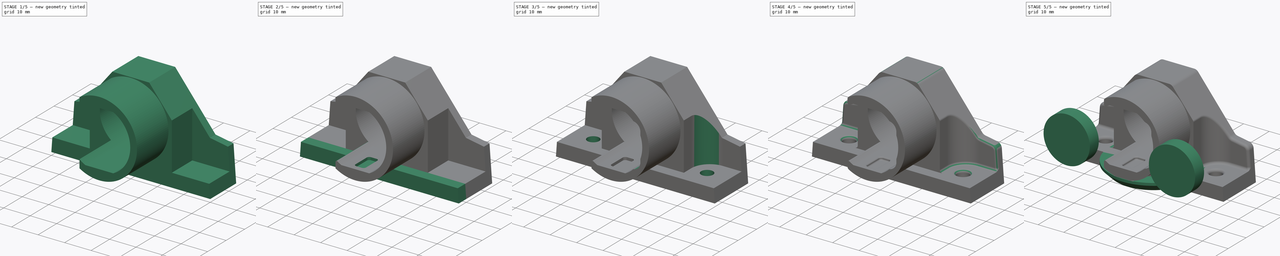
[diagram: build sequence overview — one tinted view per stage of 5, left to right]
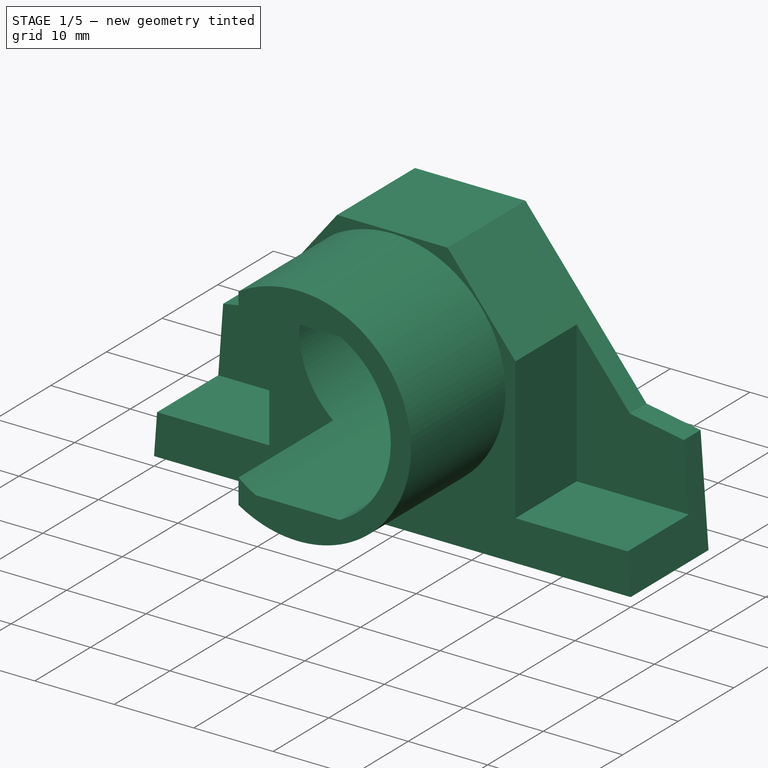
[diagram: stage 1 of 5 — iso view after this stage's code; geometry added in this stage tinted green]
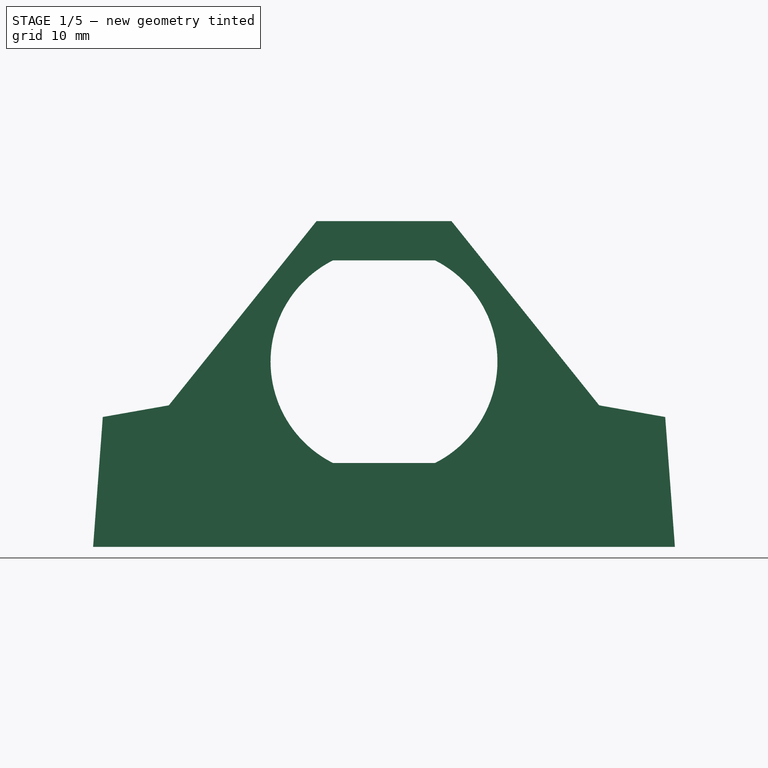
[diagram: stage 1 of 5 — front view after this stage's code; geometry added in this stage tinted green]
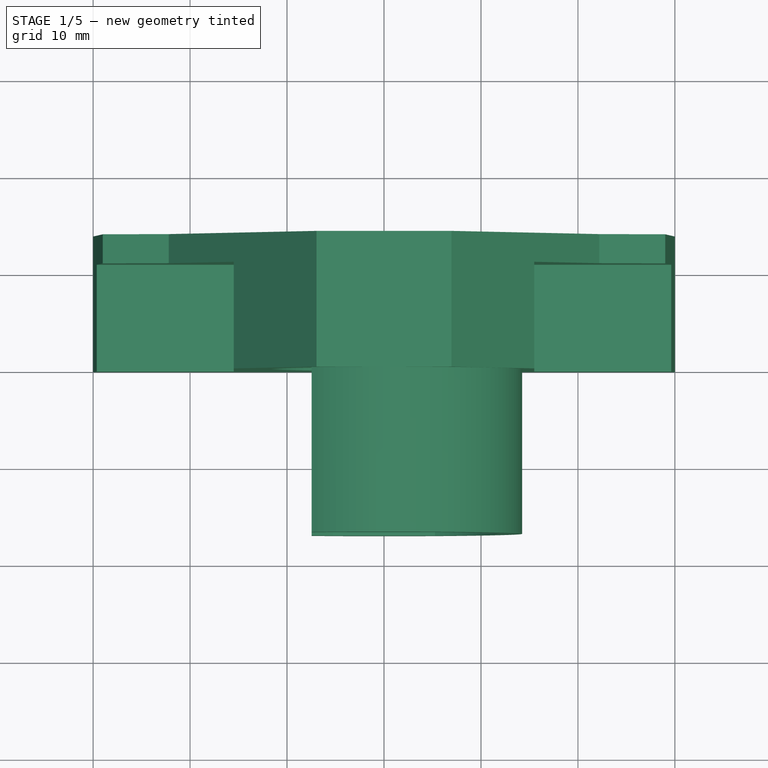
[diagram: stage 1 of 5 — top view after this stage's code; geometry added in this stage tinted green]
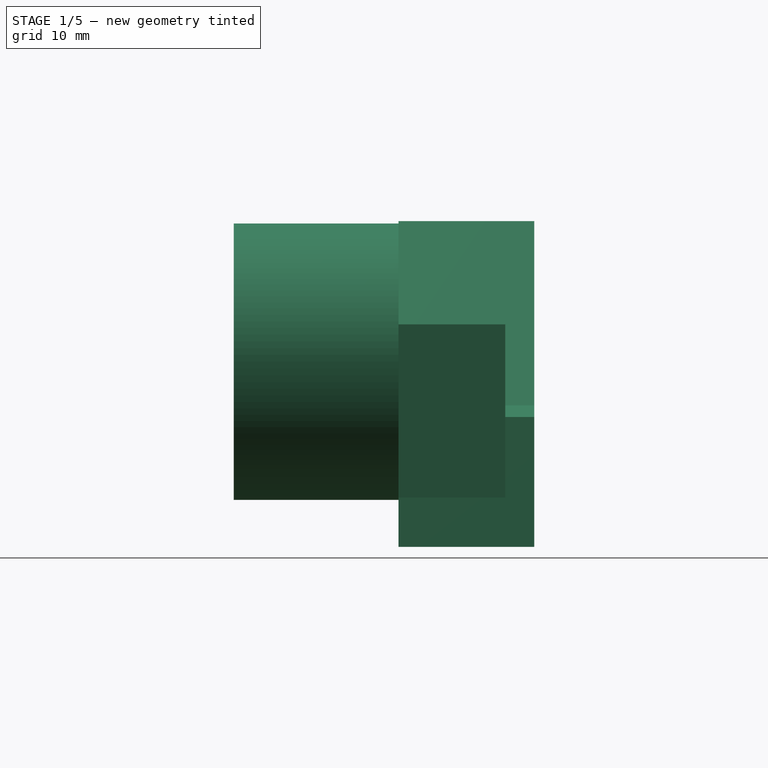
[diagram: stage 1 of 5 — right view after this stage's code; geometry added in this stage tinted green]
FCSTD DOCUMENT  (FreeCAD 0.18R16117 (Git))
Label: Trit_SensorBracket_mk7
License: All rights reserved
LicenseURL: http://en.wikipedia.org/wiki/All_rights_reserved
objects: Sketcher::SketchObject×14, PartDesign::Fillet×7, PartDesign::Pocket×6, PartDesign::Pad×4, PartDesign::Groove×2, Part::Cylinder×2, PartDesign::Body×2, App::DocumentObjectGroup×1, PartDesign::Revolution×1
note: 51 computed .brp shape members not serialized (recipe doc carries the construction recipe); baked Part::Feature solids carry a one-line shape summary decoded from their .brp

FEATURE [Sketcher::SketchObject] Sketch
  MapMode = 5
  Placement = pos=(0,0,0) rot=(1,0,0;1.5708rad)
  Support = -> [XZ_Plane]
  sketch-geometry (7):
    g0: Circle CenterX=0 CenterY=0 CenterZ=0 NormalX=0 NormalY=0 NormalZ=1 AngleXU=0 Radius=14.25
    g1: ArcOfCircle CenterX=0 CenterY=0 CenterZ=0 NormalX=0 NormalY=0 NormalZ=1 AngleXU=0 Radius=11.7 StartAngle=2.03726 EndAngle=4.24592
    g2: GeomPoint X=0 Y=14.25 Z=0
    g3: GeomPoint X=0 Y=11.7 Z=0
    g4: LineSegment StartX=-5.26189 StartY=10.45 StartZ=0 EndX=5.26189 EndY=10.45 EndZ=0
    g5: LineSegment StartX=-5.26189 StartY=-10.45 StartZ=0 EndX=5.26189 EndY=-10.45 EndZ=0
    g6: ArcOfCircle CenterX=0 CenterY=0 CenterZ=0 NormalX=0 NormalY=0 NormalZ=1 AngleXU=0 Radius=11.7 StartAngle=5.17886 EndAngle=7.38751
  constraints (18):
    c: Coincident(g0,g-1)
    c: Diameter(g0) = 28.5
    c: Coincident(g1,g0)
    c: PointOnObject(g3,g1)
    c: PointOnObject(g3,g-2)
    c: PointOnObject(g2,g-2)
    c: PointOnObject(g2,g0)
    c: Horizontal(g4)
    c: Horizontal(g5)
    c: Diameter(g1) = 23.4
    c: Coincident(g1,g4)
    c: Coincident(g6,g4)
    c: Equal(g1,g6)
    c: Coincident(g1,g5)
    c: Coincident(g6,g5)
    c: Coincident(g1,g6)
    c: Equal(g5,g4)
    c: Distance(g0,g4) = 10.45
FEATURE [PartDesign::Pad] Pad
  Length = 17
  Length2 = 100
  Placement = pos=(0,0,0) rot=(1,0,0;1.5708rad)
  Profile = -> Sketch
  Type = 0
FEATURE [Sketcher::SketchObject] Sketch004
  MapMode = 5
  Placement = pos=(0,0,0) rot=(-1,0,0;1.5708rad)
  sketch-geometry (15):
    g0: LineSegment StartX=-30 StartY=19.1 StartZ=0 EndX=30 EndY=19.1 EndZ=0
    g1: ArcOfCircle [constr] CenterX=-7.09735 CenterY=21.9625 CenterZ=0 NormalX=0 NormalY=0 NormalZ=1 AngleXU=0 Radius=23.0809 StartAngle=3.26594 EndAngle=4.38603
    g2: GeomPoint X=0 Y=0 Z=0
    g3: GeomPoint X=0 Y=17.1 Z=0
    g4: ArcOfCircle [constr] CenterX=7.09735 CenterY=21.9625 CenterZ=0 NormalX=0 NormalY=0 NormalZ=1 AngleXU=0 Radius=23.0809 StartAngle=5.03875 EndAngle=6.15884
    g5: Circle CenterX=0 CenterY=0 CenterZ=0 NormalX=0 NormalY=0 NormalZ=1 AngleXU=0 Radius=11.7
    g6: ArcOfCircle [constr] CenterX=0 CenterY=0 CenterZ=0 NormalX=0 NormalY=0 NormalZ=1 AngleXU=0 Radius=14.4973 StartAngle=3.13469 EndAngle=6.29008
    g7: LineSegment [constr] StartX=-6.95769 StartY=-14.4973 StartZ=0 EndX=6.95769 EndY=-14.4973 EndZ=0
    g8: LineSegment StartX=-30 StartY=19.1 StartZ=0 EndX=-29 EndY=5.70292 EndZ=0
    g9: LineSegment StartX=-29 StartY=5.70292 StartZ=0 EndX=-22.193 EndY=4.50266 EndZ=0
    g10: LineSegment StartX=-22.193 StartY=4.50266 StartZ=0 EndX=-6.95769 EndY=-14.4973 EndZ=0
    g11: LineSegment StartX=-6.95769 StartY=-14.4973 StartZ=0 EndX=6.95769 EndY=-14.4973 EndZ=0
    g12: LineSegment StartX=6.95769 StartY=-14.4973 StartZ=0 EndX=22.193 EndY=4.50266 EndZ=0
    g13: LineSegment StartX=22.193 StartY=4.50266 StartZ=0 EndX=29 EndY=5.70292 EndZ=0
    g14: LineSegment StartX=29 StartY=5.70292 StartZ=0 EndX=30 EndY=19.1 EndZ=0
  constraints (36):
    c: Horizontal(g0)
    c: PointOnObject(g2,g1)
    c: Coincident(g1,g0)
    c: PointOnObject(g3,g-2)
    c: Distance(g3,g0) = 2
    c: Coincident(g4,g0)
    c: Symmetric(g4,g1,g-2)
    c: DistanceX(g0,g0) = 60
    c: Distance(g4,g0) = 19
    c: Coincident(g6,g5)
    c: Coincident(g6,g1)
    c: Coincident(g6,g4)
    c: Coincident(g5,g-1)
    c: Coincident(g2,g5)
    c: Distance(g2,g0) = 19.1
    c: Symmetric(g7,g7,g-2)
    c: Coincident(g8,g0)
    c: Coincident(g8,g9)
    c: Coincident(g9,g10)
    c: Coincident(g10,g11)
    c: Coincident(g11,g7)
    c: Tangent(g11,g6)
    c: Coincident(g11,g12)
    c: Coincident(g12,g13)
    c: Coincident(g13,g14)
    c: Coincident(g14,g0)
    c: Symmetric(g13,g8,g-2)
    c: Symmetric(g9,g12,g-2)
    c: Coincident(g7,g10)
    c: Block(g6)
    c: Tangent(g10,g6)
    c: Diameter(g5) = 23.4
    c: PointOnObject(g12,g4)
    c: DistanceX(g8,g13) = 58
    c: Angle(g-1,g13) = 0.174533
    c: Distance(g9,g11) = 19
FEATURE [PartDesign::Pad] Pad001
  BaseFeature = -> Pad
  Length = 14
  Length2 = 100
  Placement = pos=(0,0,0) rot=(1,0,0;1.5708rad)
  Profile = -> Sketch004
  Type = 0
FEATURE [Sketcher::SketchObject] Sketch005
  MapMode = 5
  Support = -> [XY_Plane]
  sketch-geometry (8):
    g0: LineSegment StartX=32.5 StartY=11 StartZ=0 EndX=15.5 EndY=11 EndZ=0
    g1: LineSegment StartX=15.5 StartY=11 StartZ=0 EndX=15.5 EndY=0 EndZ=0
    g2: LineSegment StartX=15.5 StartY=0 StartZ=0 EndX=32.5 EndY=0 EndZ=0
    g3: LineSegment StartX=32.5 StartY=0 StartZ=0 EndX=32.5 EndY=11 EndZ=0
    g4: LineSegment StartX=-32.5 StartY=11 StartZ=0 EndX=-15.5 EndY=11 EndZ=0
    g5: LineSegment StartX=-15.5 StartY=11 StartZ=0 EndX=-15.5 EndY=0 EndZ=0
    g6: LineSegment StartX=-15.5 StartY=0 StartZ=0 EndX=-32.5 EndY=0 EndZ=0
    g7: LineSegment StartX=-32.5 StartY=0 StartZ=0 EndX=-32.5 EndY=11 EndZ=0
  constraints (22):
    c: Coincident(g0,g1)
    c: Coincident(g1,g2)
    c: Coincident(g2,g3)
    c: Coincident(g3,g0)
    c: Horizontal(g0)
    c: Horizontal(g2)
    c: Vertical(g1)
    c: Vertical(g3)
    c: Coincident(g4,g5)
    c: Coincident(g5,g6)
    c: Coincident(g6,g7)
    c: Coincident(g7,g4)
    c: Horizontal(g4)
    c: Horizontal(g6)
    c: Vertical(g5)
    c: Vertical(g7)
    c: Symmetric(g4,g0,g-2)
    c: Symmetric(g6,g2,g-2)
    c: Distance(g3) = 11
    c: DistanceX(g4,g0) = 65
    c: DistanceX(g2,g2) = 17
    c: PointOnObject(g2,g-1)
FEATURE [PartDesign::Pocket] Pocket001
  BaseFeature = -> Pad001
  Length = 14
  Length2 = 119
  Placement = pos=(0,0,0) rot=(1,0,0;1.5708rad)
  Profile = -> Sketch005
  Type = 4
FEATURE [Sketcher::SketchObject] Sketch012  label="BACKSLOT"
  MapMode = 5
  Placement = pos=(0,-16,-4e-15) rot=(1,0,0;1.5708rad)
  sketch-geometry (10):
    g0: LineSegment [constr] StartX=21.6799 StartY=14.0853 StartZ=0 EndX=7.46241 EndY=14.0853 EndZ=0
    g1: LineSegment [constr] StartX=7.46241 StartY=14.0853 StartZ=0 EndX=7.46241 EndY=-16 EndZ=0
    g2: LineSegment [constr] StartX=7.46241 StartY=-16 StartZ=0 EndX=21.6799 EndY=-16 EndZ=0
    g3: LineSegment [constr] StartX=21.6799 StartY=-16 StartZ=0 EndX=21.6799 EndY=14.0853 EndZ=0
    g4: LineSegment StartX=-21.6799 StartY=14.0853 StartZ=0 EndX=-7.46241 EndY=14.0853 EndZ=0
    g5: LineSegment StartX=-7.46241 StartY=14.0853 StartZ=0 EndX=-7.46241 EndY=-16 EndZ=0
    g6: LineSegment StartX=-7.46241 StartY=-16 StartZ=0 EndX=-21.6799 EndY=-16 EndZ=0
    g7: LineSegment StartX=-21.6799 StartY=-16 StartZ=0 EndX=-21.6799 EndY=14.0853 EndZ=0
    g8: GeomPoint X=7.46241 Y=8.75 Z=0
    g9: GeomPoint X=7.46241 Y=-8.75 Z=0
  constraints (21):
    c: Coincident(g0,g1)
    c: Coincident(g1,g2)
    c: Coincident(g2,g3)
    c: Coincident(g3,g0)
    c: Horizontal(g0)
    c: Horizontal(g2)
    c: Vertical(g1)
    c: Vertical(g3)
    c: Coincident(g4,g5)
    c: Coincident(g5,g6)
    c: Coincident(g6,g7)
    c: Coincident(g7,g4)
    c: Horizontal(g4)
    c: Horizontal(g6)
    c: Vertical(g5)
    c: Vertical(g7)
    c: Symmetric(g0,g4,g-2)
    c: Symmetric(g1,g5,g-2)
    c: Symmetric(g8,g9,g-1)
    c: PointOnObject(g8,g1)
    c: DistanceY(g9,g8) = 17.5
FEATURE [Sketcher::SketchObject] Sketch014  label="GTWORKS_LOGO"
  MapMode = 5
  Placement = pos=(0,14,-1.6e-14) rot=(-1,0,0;1.5708rad)
  sketch-geometry (73):
    g0: LineSegment [constr] StartX=-26.698 StartY=12.8827 StartZ=0 EndX=-21.906 EndY=12.8827 EndZ=0
    g1: LineSegment [constr] StartX=-21.906 StartY=12.8827 StartZ=0 EndX=-21.906 EndY=6.66673 EndZ=0
    g2: LineSegment [constr] StartX=-21.906 StartY=6.66673 StartZ=0 EndX=-26.698 EndY=6.66673 EndZ=0
    g3: LineSegment [constr] StartX=-26.698 StartY=6.66673 StartZ=0 EndX=-26.698 EndY=12.8827 EndZ=0
    g4: LineSegment [constr] StartX=-20.618 StartY=12.8827 StartZ=0 EndX=-15.826 EndY=12.8827 EndZ=0
    g5: LineSegment [constr] StartX=-15.826 StartY=12.8827 StartZ=0 EndX=-15.826 EndY=6.66673 EndZ=0
    g6: LineSegment [constr] StartX=-15.826 StartY=6.66673 StartZ=0 EndX=-20.618 EndY=6.66673 EndZ=0
    g7: LineSegment [constr] StartX=-20.618 StartY=6.66673 StartZ=0 EndX=-20.618 EndY=12.8827 EndZ=0
    g8: LineSegment StartX=-21.906 StartY=12.8827 StartZ=0 EndX=-24.298 EndY=12.8827 EndZ=0
    g9: LineSegment StartX=-26.698 StartY=10.4827 StartZ=0 EndX=-26.698 EndY=9.06673 EndZ=0
    g10: LineSegment StartX=-24.298 StartY=6.66673 StartZ=0 EndX=-21.906 EndY=6.66673 EndZ=0
    g11: LineSegment StartX=-21.906 StartY=6.66673 StartZ=0 EndX=-21.906 EndY=10.3947 EndZ=0
    g12: LineSegment StartX=-21.906 StartY=10.3947 StartZ=0 EndX=-23.77 EndY=10.3947 EndZ=0
    g13: LineSegment StartX=-23.77 StartY=10.3947 StartZ=0 EndX=-23.77 EndY=8.53073 EndZ=0
    g14: LineSegment StartX=-23.77 StartY=8.53073 StartZ=0 EndX=-24.53 EndY=8.53073 EndZ=0
    g15: LineSegment StartX=-25.058 StartY=9.05873 StartZ=0 EndX=-25.058 EndY=10.4907 EndZ=0
    g16: LineSegment StartX=-24.53 StartY=11.0187 StartZ=0 EndX=-21.906 EndY=11.0187 EndZ=0
    g17: LineSegment StartX=-21.906 StartY=11.0187 StartZ=0 EndX=-21.906 EndY=12.8827 EndZ=0
    g18: ArcOfCircle CenterX=-24.298 CenterY=10.4827 CenterZ=0 NormalX=0 NormalY=0 NormalZ=1 AngleXU=0 Radius=2.4 StartAngle=1.5708 EndAngle=3.14159
    g19: ArcOfCircle CenterX=-24.298 CenterY=9.06673 CenterZ=0 NormalX=0 NormalY=0 NormalZ=1 AngleXU=0 Radius=2.4 StartAngle=3.14159 EndAngle=4.71239
    g20: ArcOfCircle CenterX=-24.53 CenterY=9.05873 CenterZ=0 NormalX=0 NormalY=0 NormalZ=1 AngleXU=0 Radius=0.528 StartAngle=3.14159 EndAngle=4.71239
    g21: ArcOfCircle CenterX=-24.53 CenterY=10.4907 CenterZ=0 NormalX=0 NormalY=0 NormalZ=1 AngleXU=0 Radius=0.528 StartAngle=1.5708 EndAngle=3.14159
    g22: LineSegment StartX=-17.4233 StartY=6.66673 StartZ=0 EndX=-19.0206 EndY=6.66673 EndZ=0
    g23: LineSegment StartX=-19.0206 StartY=6.66673 StartZ=0 EndX=-19.0206 EndY=11.0187 EndZ=0
    g24: LineSegment StartX=-19.0206 StartY=11.0187 StartZ=0 EndX=-20.618 EndY=11.0187 EndZ=0
    g25: LineSegment StartX=-20.618 StartY=11.0187 StartZ=0 EndX=-20.618 EndY=12.8827 EndZ=0
    g26: LineSegment StartX=-20.618 StartY=12.8827 StartZ=0 EndX=-15.826 EndY=12.8827 EndZ=0
    g27: LineSegment StartX=-15.826 StartY=12.8827 StartZ=0 EndX=-15.826 EndY=11.0187 EndZ=0
    g28: LineSegment StartX=-15.826 StartY=11.0187 StartZ=0 EndX=-17.4233 EndY=11.0187 EndZ=0
    g29: LineSegment StartX=-17.4233 StartY=11.0187 StartZ=0 EndX=-17.4233 EndY=6.66673 EndZ=0
    g30: LineSegment StartX=-22.5518 StartY=12.4152 StartZ=0 EndX=-25.07 EndY=12.4152 EndZ=0
    g31: LineSegment StartX=-25.0477 StartY=11.2111 StartZ=0 EndX=-22.5518 EndY=11.2111 EndZ=0
    g32: LineSegment StartX=-22.3518 StartY=11.4111 StartZ=0 EndX=-22.3518 EndY=12.2152 EndZ=0
    g33: LineSegment StartX=-25.2477 StartY=11.0111 StartZ=0 EndX=-25.2477 EndY=8.43399 EndZ=0
    g34: LineSegment StartX=-26.0741 StartY=8.44336 StartZ=0 EndX=-26.0741 EndY=11.0443 EndZ=0
    g35: LineSegment StartX=-24.8354 StartY=8.02852 StartZ=0 EndX=-23.5217 EndY=8.02852 EndZ=0
    g36: LineSegment StartX=-22.1746 StartY=7.92521 StartZ=0 EndX=-22.1746 EndY=7.24296 EndZ=0
    g37: LineSegment StartX=-22.3746 StartY=7.04296 StartZ=0 EndX=-24.7866 EndY=7.04296 EndZ=0
    g38: LineSegment StartX=-23.3217 StartY=8.22852 StartZ=0 EndX=-23.3217 EndY=9.89252 EndZ=0
    g39: LineSegment StartX=-23.1217 StartY=10.0925 StartZ=0 EndX=-22.3746 EndY=10.0925 EndZ=0
    g40: LineSegment StartX=-22.1746 StartY=9.89252 StartZ=0 EndX=-22.1746 EndY=7.92521 EndZ=0
    g41: LineSegment StartX=-19.937 StartY=12.594 StartZ=0 EndX=-16.5911 EndY=12.594 EndZ=0
    g42: LineSegment StartX=-16.4528 StartY=12.4557 StartZ=0 EndX=-16.4528 EndY=11.616 EndZ=0
    g43: LineSegment StartX=-16.6139 StartY=11.4549 StartZ=0 EndX=-17.7835 EndY=11.4549 EndZ=0
    g44: LineSegment StartX=-20.0981 StartY=11.5932 StartZ=0 EndX=-20.0981 EndY=12.4329 EndZ=0
    g45: LineSegment StartX=-17.9037 StartY=11.3347 StartZ=0 EndX=-17.9037 EndY=7.05791 EndZ=0
    g46: LineSegment StartX=-17.9794 StartY=6.9822 StartZ=0 EndX=-18.4391 EndY=6.9822 EndZ=0
    g47: LineSegment StartX=-18.5272 StartY=7.07038 StartZ=0 EndX=-18.5272 EndY=11.2377 EndZ=0
    g48: LineSegment StartX=-25.2349 StartY=12.3284 StartZ=0 EndX=-26.039 EndY=11.1575 EndZ=0
    g49: LineSegment StartX=-25.1868 StartY=8.29024 StartZ=0 EndX=-24.9744 EndY=8.08478 EndZ=0
    g50: LineSegment StartX=-26.0223 StartY=8.30908 StartZ=0 EndX=-24.9348 EndY=7.10868 EndZ=0
    g51: LineSegment StartX=-18.7444 StartY=11.4549 StartZ=0 EndX=-19.9598 EndY=11.4549 EndZ=0
    g52: ArcOfCircle CenterX=-25.07 CenterY=12.2152 CenterZ=0 NormalX=0 NormalY=0 NormalZ=1 AngleXU=0 Radius=0.2 StartAngle=1.5708 EndAngle=2.53986
    g53: ArcOfCircle CenterX=-25.8741 CenterY=11.0443 CenterZ=0 NormalX=0 NormalY=0 NormalZ=1 AngleXU=0 Radius=0.2 StartAngle=2.53986 EndAngle=3.14159
    g54: ArcOfCircle CenterX=-25.8741 CenterY=8.44336 CenterZ=0 NormalX=0 NormalY=0 NormalZ=1 AngleXU=0 Radius=0.2 StartAngle=3.14159 EndAngle=3.87769
    g55: ArcOfCircle CenterX=-24.7866 CenterY=7.24296 CenterZ=0 NormalX=0 NormalY=0 NormalZ=1 AngleXU=0 Radius=0.2 StartAngle=3.87769 EndAngle=4.71239
    g56: ArcOfCircle CenterX=-22.3746 CenterY=7.24296 CenterZ=0 NormalX=0 NormalY=0 NormalZ=1 AngleXU=0 Radius=0.2 StartAngle=4.71239 EndAngle=6.28319
    g57: ArcOfCircle CenterX=-22.3746 CenterY=9.89252 CenterZ=0 NormalX=0 NormalY=0 NormalZ=1 AngleXU=0 Radius=0.2 StartAngle=4e-16 EndAngle=1.5708
    g58: ArcOfCircle CenterX=-23.1217 CenterY=9.89252 CenterZ=0 NormalX=0 NormalY=0 NormalZ=1 AngleXU=0 Radius=0.2 StartAngle=1.5708 EndAngle=3.14159
    g59: ArcOfCircle CenterX=-24.8354 CenterY=8.22852 CenterZ=0 NormalX=0 NormalY=0 NormalZ=1 AngleXU=0 Radius=0.2 StartAngle=3.94354 EndAngle=4.71239
    g60: ArcOfCircle CenterX=-25.0477 CenterY=8.43399 CenterZ=0 NormalX=0 NormalY=0 NormalZ=1 AngleXU=0 Radius=0.2 StartAngle=3.14159 EndAngle=3.94354
    g61: ArcOfCircle CenterX=-25.0477 CenterY=11.0111 CenterZ=0 NormalX=0 NormalY=0 NormalZ=1 AngleXU=0 Radius=0.2 StartAngle=1.5708 EndAngle=3.14159
    g62: ArcOfCircle CenterX=-22.5518 CenterY=12.2152 CenterZ=0 NormalX=0 NormalY=0 NormalZ=1 AngleXU=0 Radius=0.2 StartAngle=0 EndAngle=1.5708
    g63: ArcOfCircle CenterX=-22.5518 CenterY=11.4111 CenterZ=0 NormalX=0 NormalY=0 NormalZ=1 AngleXU=0 Radius=0.2 StartAngle=4.71239 EndAngle=6.28319
    g64: ArcOfCircle CenterX=-19.937 CenterY=12.4329 CenterZ=0 NormalX=0 NormalY=0 NormalZ=1 AngleXU=0 Radius=0.161101 StartAngle=1.5708 EndAngle=3.14159
    g65: ArcOfCircle CenterX=-19.9598 CenterY=11.5932 CenterZ=0 NormalX=0 NormalY=0 NormalZ=1 AngleXU=0 Radius=0.138317 StartAngle=3.14159 EndAngle=4.71239
    g66: ArcOfCircle CenterX=-18.7444 CenterY=11.2377 CenterZ=0 NormalX=0 NormalY=0 NormalZ=1 AngleXU=0 Radius=0.217158 StartAngle=0 EndAngle=1.5708
    g67: ArcOfCircle CenterX=-17.7835 CenterY=11.3347 CenterZ=0 NormalX=0 NormalY=0 NormalZ=1 AngleXU=0 Radius=0.120175 StartAngle=1.5708 EndAngle=3.14159
    g68: ArcOfCircle CenterX=-16.6139 CenterY=11.616 CenterZ=0 NormalX=0 NormalY=0 NormalZ=1 AngleXU=0 Radius=0.161101 StartAngle=4.71239 EndAngle=6.28319
    g69: ArcOfCircle CenterX=-16.5911 CenterY=12.4557 CenterZ=0 NormalX=0 NormalY=0 NormalZ=1 AngleXU=0 Radius=0.138317 StartAngle=0 EndAngle=1.5708
    g70: ArcOfCircle CenterX=-18.4391 CenterY=7.07038 CenterZ=0 NormalX=0 NormalY=0 NormalZ=1 AngleXU=0 Radius=0.088181 StartAngle=3.14159 EndAngle=4.71239
    g71: ArcOfCircle CenterX=-17.9794 CenterY=7.05791 CenterZ=0 NormalX=0 NormalY=0 NormalZ=1 AngleXU=0 Radius=0.075711 StartAngle=4.71239 EndAngle=6.28319
    g72: ArcOfCircle CenterX=-23.5217 CenterY=8.22852 CenterZ=0 NormalX=0 NormalY=0 NormalZ=1 AngleXU=0 Radius=0.2 StartAngle=4.71239 EndAngle=6.28319
  constraints (155):
    c: Coincident(g0,g1)
    c: Coincident(g1,g2)
    c: Coincident(g2,g3)
    c: Coincident(g3,g0)
    c: Horizontal(g0)
    c: Horizontal(g2)
    c: Vertical(g3)
    c: Coincident(g4,g5)
    c: Coincident(g5,g6)
    c: Coincident(g6,g7)
    c: Coincident(g7,g4)
    c: Horizontal(g4)
    c: Horizontal(g6)
    c: Vertical(g5)
    c: Vertical(g7)
    c: Equal(g0,g4)
    c: Equal(g3,g7)
    c: Distance(g0) = 4.792
    c: Distance(g3) = 6.216
    c: Coincident(g0,g8)
    c: Coincident(g10,g1)
    c: Coincident(g10,g11)
    c: PointOnObject(g11,g1)
    c: Vertical(g11)
    c: Coincident(g11,g12)
    c: Horizontal(g12)
    c: Coincident(g12,g13)
    c: Vertical(g13)
    c: Coincident(g13,g14)
    c: Horizontal(g14)
    c: Vertical(g15)
    c: PointOnObject(g16,g1)
    c: Horizontal(g16)
    c: Coincident(g16,g17)
    c: Coincident(g17,g8)
    c: Tangent(g8,g18) = -1.5708
    c: Tangent(g9,g18) = -1.5708
    c: Tangent(g9,g19) = -1.5708
    c: Tangent(g10,g19) = -1.5708
    c: Tangent(g14,g20) = 1.5708
    c: Tangent(g15,g20) = 1.5708
    c: Tangent(g15,g21) = 1.5708
    c: Tangent(g16,g21) = 1.5708
    c: Equal(g21,g20)
    c: PointOnObject(g9,g3)
    c: PointOnObject(g9,g3)
    c: PointOnObject(g8,g0)
    c: PointOnObject(g10,g2)
    c: Equal(g18,g19)
    c: Radius(g18) = 2.4
    c: Radius(g21) = 0.528
    c: Distance(g17) = 1.864
    c: Equal(g17,g12)
    c: Equal(g12,g13)
    c: Distance(g11) = 3.728
    c: Distance(g15,g13) = 1.288
    c: PointOnObject(g22,g6)
    c: PointOnObject(g22,g6)
    c: Coincident(g22,g23)
    c: Vertical(g23)
    c: Coincident(g23,g24)
    c: PointOnObject(g24,g7)
    c: Horizontal(g24)
    c: Coincident(g24,g25)
    c: Coincident(g25,g4)
    c: Coincident(g25,g26)
    c: Coincident(g26,g4)
    c: Coincident(g26,g27)
    c: PointOnObject(g27,g5)
    c: Coincident(g27,g28)
    c: Coincident(g28,g29)
    c: Coincident(g29,g22)
    c: Vertical(g29)
    c: Equal(g28,g22)
    c: Equal(g22,g24)
    c: Horizontal(g28)
    c: Equal(g27,g25)
    c: Equal(g25,g17)
    c: Horizontal(g25,g8)
    c: Distance(g25,g8) = 1.288
    c: Horizontal(g30)
    c: Horizontal(g31)
    c: Vertical(g32)
    c: Vertical(g33)
    c: Vertical(g34)
    c: Horizontal(g35)
    c: Horizontal(g37)
    c: Vertical(g36)
    c: Horizontal(g39)
    c: Vertical(g38)
    c: Vertical(g40)
    c: Coincident(g40,g36)
    c: Horizontal(g41)
    c: Horizontal(g43)
    c: Vertical(g42)
    c: Vertical(g44)
    c: Horizontal(g46)
    c: Vertical(g45)
    c: Vertical(g47)
    c: Tangent(g43,g51)
    c: Tangent(g30,g52) = -1.5708
    c: Tangent(g48,g52) = -1.5708
    c: Tangent(g34,g53) = 1.5708
    c: Tangent(g48,g53) = -1.5708
    c: Tangent(g34,g54) = 1.5708
    c: Tangent(g50,g54) = -1.5708
    c: Tangent(g37,g55) = 1.5708
    c: Tangent(g50,g55) = -1.5708
    c: Tangent(g36,g56) = 1.5708
    c: Tangent(g37,g56) = 1.5708
    c: Tangent(g39,g57) = 1.5708
    c: Tangent(g40,g57) = 1.5708
    c: Tangent(g38,g58) = 1.5708
    c: Tangent(g39,g58) = 1.5708
    c: Tangent(g35,g59) = -1.5708
    c: Tangent(g49,g59) = -1.5708
    c: Tangent(g33,g60) = -1.5708
    c: Tangent(g49,g60) = -1.5708
    c: Tangent(g31,g61) = 1.5708
    c: Tangent(g33,g61) = -1.5708
    c: Tangent(g30,g62) = -1.5708
    c: Tangent(g32,g62) = -1.5708
    c: Tangent(g31,g63) = -1.5708
    c: Tangent(g32,g63) = -1.5708
    c: Tangent(g41,g64) = 1.5708
    c: Tangent(g44,g64) = 1.5708
    c: Tangent(g44,g65) = 1.5708
    c: Tangent(g51,g65) = 1.5708
    c: Tangent(g47,g66) = -1.5708
    c: Tangent(g51,g66) = -1.5708
    c: Tangent(g45,g67) = -1.5708
    c: Tangent(g43,g67) = -1.5708
    c: Tangent(g42,g68) = 1.5708
    c: Tangent(g43,g68) = 1.5708
    c: Tangent(g41,g69) = 1.5708
    c: Tangent(g42,g69) = 1.5708
    c: Tangent(g46,g70) = 1.5708
    c: Tangent(g47,g70) = 1.5708
    c: Tangent(g45,g71) = 1.5708
    c: Tangent(g46,g71) = 1.5708
    c: Tangent(g38,g72) = -1.5708
    c: Tangent(g35,g72) = -1.5708
    c: Equal(g57,g58)
    c: Equal(g58,g72)
    c: Equal(g72,g59)
    c: Equal(g59,g60)
    c: Equal(g60,g54)
    c: Equal(g54,g55)
    c: Equal(g55,g56)
    c: Equal(g56,g61)
    c: Equal(g61,g63)
    c: Equal(g63,g62)
    c: Equal(g62,g52)
    c: Equal(g52,g53)
    c: Radius(g62) = 0.2
FEATURE [PartDesign::Pocket] Pocket
  BaseFeature = -> Pocket001
  Length = 16
  Length2 = 100
  Placement = pos=(0,0,0) rot=(1,0,0;1.5708rad)
  Profile = -> Sketch012
  Type = 4
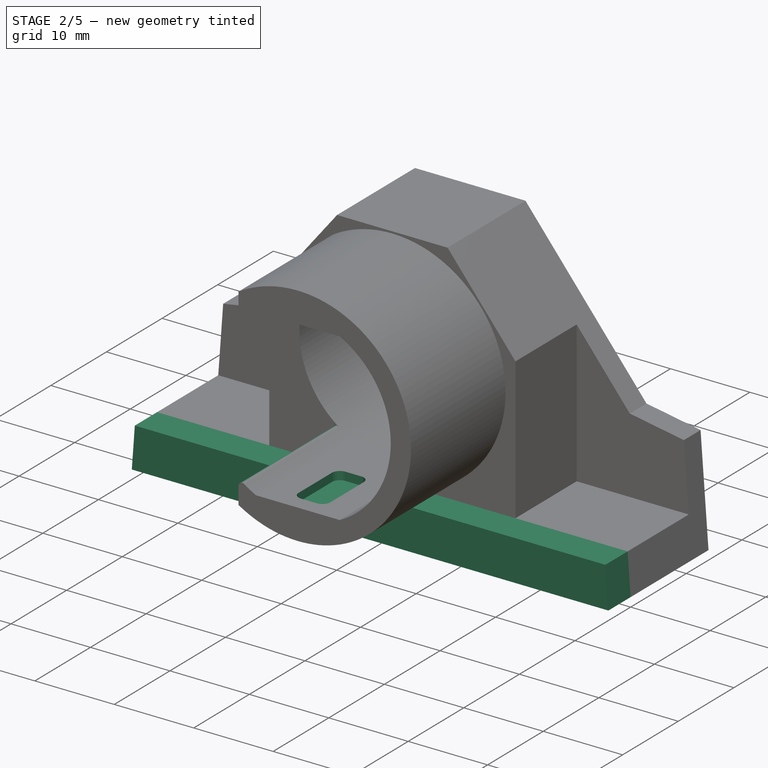
[diagram: stage 2 of 5 — iso view after this stage's code; geometry added in this stage tinted green]
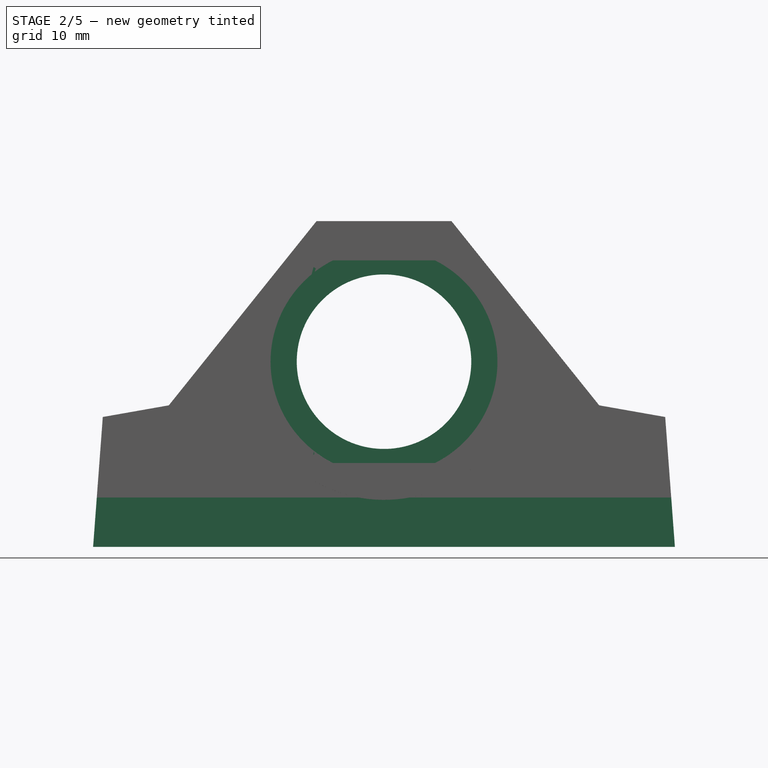
[diagram: stage 2 of 5 — front view after this stage's code; geometry added in this stage tinted green]
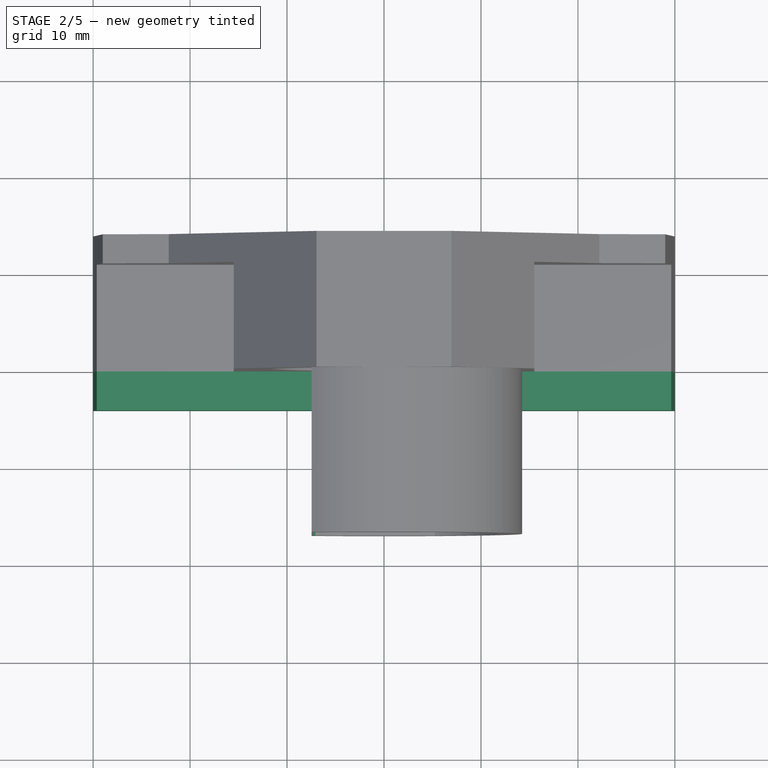
[diagram: stage 2 of 5 — top view after this stage's code; geometry added in this stage tinted green]
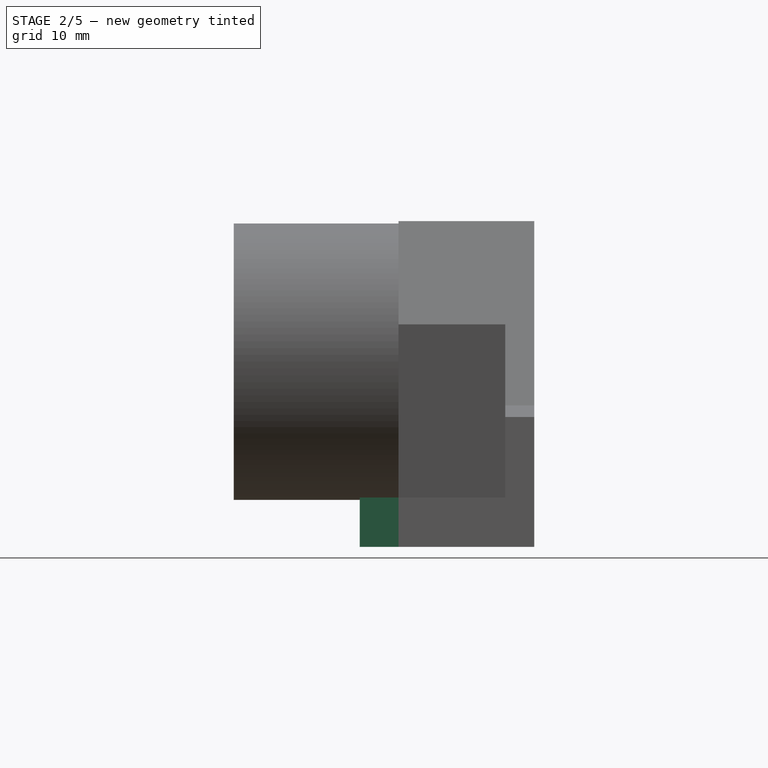
[diagram: stage 2 of 5 — right view after this stage's code; geometry added in this stage tinted green]
FEATURE [Sketcher::SketchObject] Sketch016
  MapMode = 5
  Support = -> [XY_Plane]
  sketch-geometry (8):
    g0: LineSegment StartX=-1 StartY=-15 StartZ=0 EndX=1 EndY=-15 EndZ=0
    g1: LineSegment StartX=2 StartY=-14 StartZ=0 EndX=2 EndY=-8 EndZ=0
    g2: LineSegment StartX=1 StartY=-7 StartZ=0 EndX=-1 EndY=-7 EndZ=0
    g3: LineSegment StartX=-2 StartY=-8 StartZ=0 EndX=-2 EndY=-14 EndZ=0
    g4: ArcOfCircle CenterX=-1 CenterY=-8 CenterZ=0 NormalX=0 NormalY=0 NormalZ=1 AngleXU=0 Radius=1 StartAngle=1.5708 EndAngle=3.14159
    g5: ArcOfCircle CenterX=-1 CenterY=-14 CenterZ=0 NormalX=0 NormalY=0 NormalZ=1 AngleXU=0 Radius=1 StartAngle=3.14159 EndAngle=4.71239
    g6: ArcOfCircle CenterX=1 CenterY=-8 CenterZ=0 NormalX=0 NormalY=0 NormalZ=1 AngleXU=0 Radius=1 StartAngle=0 EndAngle=1.5708
    g7: ArcOfCircle CenterX=1 CenterY=-14 CenterZ=0 NormalX=0 NormalY=0 NormalZ=1 AngleXU=0 Radius=1 StartAngle=4.71239 EndAngle=6.28319
  constraints (19):
    c: Horizontal(g2)
    c: Vertical(g1)
    c: Vertical(g3)
    c: Distance(g-1,g2) = 7
    c: Tangent(g2,g4) = -1.5708
    c: Tangent(g3,g4) = -1.5708
    c: Tangent(g3,g5) = -1.5708
    c: Tangent(g0,g5) = -1.5708
    c: Horizontal(g0)
    c: Equal(g4,g5)
    c: Radius(g5) = 1
    c: Tangent(g1,g6) = -1.5708
    c: Tangent(g2,g6) = -1.5708
    c: Tangent(g0,g7) = -1.5708
    c: Tangent(g1,g7) = -1.5708
    c: Equal(g7,g6)
    c: Distance(g1,g3) = 4
    c: Symmetric(g3,g1,g-2)
    c: Distance(g-1,g0) = 15
FEATURE [Sketcher::SketchObject] Sketch018
  MapMode = 5
  Placement = pos=(0,14,1e-15) rot=(1,0,0;1.5708rad)
  sketch-geometry (2):
    g0: Circle CenterX=0 CenterY=0 CenterZ=0 NormalX=0 NormalY=0 NormalZ=1 AngleXU=0 Radius=11.75
    g1: Circle CenterX=0 CenterY=0 CenterZ=0 NormalX=0 NormalY=0 NormalZ=1 AngleXU=0 Radius=9
  constraints (4):
    c: Coincident(g0,g-1)
    c: Coincident(g1,g0)
    c: Diameter(g1) = 18
    c: Diameter(g0) = 23.5
FEATURE [Sketcher::SketchObject] Sketch019
  MapMode = 5
  Placement = pos=(0,-16,-4e-15) rot=(1,0,0;1.5708rad)
  sketch-geometry (14):
    g0: ArcOfCircle CenterX=-6.85402 CenterY=10.2234 CenterZ=0 NormalX=0 NormalY=0 NormalZ=1 AngleXU=0 Radius=0.608389 StartAngle=3.14159 EndAngle=5.30299
    g1: LineSegment StartX=-7.46241 StartY=11.28 StartZ=0 EndX=-7.46241 EndY=10.2234 EndZ=0
    g2: ArcOfCircle CenterX=8.68e-14 CenterY=-1.735e-13 CenterZ=0 NormalX=0 NormalY=0 NormalZ=1 AngleXU=0 Radius=11.7 StartAngle=2.03726 EndAngle=2.16139
    g3: LineSegment StartX=-7.46241 StartY=11.28 StartZ=0 EndX=-10.6874 EndY=11.28 EndZ=0
    g4: LineSegment StartX=-10.6874 StartY=11.28 StartZ=0 EndX=-10.6874 EndY=7.00501 EndZ=0
    g5: LineSegment StartX=-10.6874 StartY=7.00501 StartZ=0 EndX=-6.12297 EndY=7.00501 EndZ=0
    g6: LineSegment StartX=-6.12297 StartY=7.00501 StartZ=0 EndX=-5.26189 EndY=10.45 EndZ=0
    g7: ArcOfCircle CenterX=-6.98608 CenterY=-9.97284 CenterZ=0 NormalX=0 NormalY=0 NormalZ=1 AngleXU=0 Radius=0.476325 StartAngle=0.959728 EndAngle=3.14159
    g8: LineSegment StartX=-7.46241 StartY=-11.28 StartZ=0 EndX=-7.46241 EndY=-9.97284 EndZ=0
    g9: ArcOfCircle CenterX=1.29537 CenterY=1.8492 CenterZ=0 NormalX=0 NormalY=0 NormalZ=1 AngleXU=0 Radius=13.9578 StartAngle=4.10132 EndAngle=4.13049
    g10: LineSegment StartX=-7.46241 StartY=-11.28 StartZ=0 EndX=-10.6874 EndY=-11.28 EndZ=0
    g11: LineSegment StartX=-10.6874 StartY=-11.28 StartZ=0 EndX=-10.6874 EndY=-7.00501 EndZ=0
    g12: LineSegment StartX=-10.6874 StartY=-7.00501 StartZ=0 EndX=-6.12297 EndY=-7.00501 EndZ=0
    g13: LineSegment StartX=-6.12297 StartY=-7.00501 StartZ=0 EndX=-6.37602 EndY=-9.81138 EndZ=0
  constraints (20):
    c: Coincident(g0,g1)
    c: Coincident(g0,g2)
    c: Coincident(g3,g1)
    c: Horizontal(g3)
    c: Coincident(g4,g3)
    c: Vertical(g4)
    c: Coincident(g5,g4)
    c: Horizontal(g5)
    c: Coincident(g6,g5)
    c: Coincident(g6,g2)
    c: Coincident(g7,g8)
    c: Coincident(g7,g9)
    c: Coincident(g10,g8)
    c: Horizontal(g10)
    c: Coincident(g11,g10)
    c: Vertical(g11)
    c: Coincident(g12,g11)
    c: Horizontal(g12)
    c: Coincident(g13,g12)
    c: Coincident(g13,g9)
FEATURE [PartDesign::Pocket] Pocket002
  BaseFeature = -> Pocket
  Length = 16
  Length2 = 100
  Placement = pos=(0,0,0) rot=(1,0,0;1.5708rad)
  Profile = -> Sketch019
  Type = 4
FEATURE [PartDesign::Pad] Pad003
  BaseFeature = -> Pocket002
  Length = 3
  Length2 = 100
  Placement = pos=(0,0,0) rot=(1,0,0;1.5708rad)
  Profile = -> Sketch018
  Type = 0
FEATURE [PartDesign::Pocket] Pocket003
  BaseFeature = -> Pad003
  Length = 23
  Length2 = 100
  Midplane = true
  Placement = pos=(0,0,0) rot=(1,0,0;1.5708rad)
  Profile = -> Sketch016
  Type = 0
FEATURE [Sketcher::SketchObject] Sketch021
  MapMode = 5
  Placement = pos=(0,0,0) rot=(1,0,0;1.5708rad)
  Support = -> [Pocket003]
  sketch-geometry (4):
    g0: LineSegment StartX=-30 StartY=-19.1 StartZ=0 EndX=-29.6193 EndY=-14 EndZ=0
    g1: LineSegment StartX=29.6193 StartY=-14 StartZ=0 EndX=30 EndY=-19.1 EndZ=0
    g2: LineSegment StartX=-30 StartY=-19.1 StartZ=0 EndX=30 EndY=-19.1 EndZ=0
    g3: LineSegment StartX=-29.6193 StartY=-14 StartZ=0 EndX=29.6193 EndY=-14 EndZ=0
  constraints (6):
    c: Coincident(g2,g0)
    c: Coincident(g2,g1)
    c: Horizontal(g2)
    c: Coincident(g3,g0)
    c: Coincident(g3,g1)
    c: Horizontal(g3)
FEATURE [PartDesign::Pad] Pad004
  BaseFeature = -> Pocket003
  Length = 4
  Length2 = 100
  Placement = pos=(0,0,0) rot=(1,0,0;1.5708rad)
  Profile = -> Sketch021
  Type = 0
FEATURE [Sketcher::SketchObject] Sketch024
  MapMode = 5
  Support = -> [XY_Plane]
  sketch-geometry (3):
    g0: LineSegment StartX=-10.8387 StartY=16.5391 StartZ=0 EndX=-8.91352 EndY=16.5391 EndZ=0
    g1: LineSegment StartX=-8.91352 StartY=16.5391 StartZ=0 EndX=-8.91352 EndY=11.2497 EndZ=0
    g2: LineSegment StartX=-8.91352 StartY=11.2497 StartZ=0 EndX=-10.8387 EndY=16.5391 EndZ=0
  constraints (6):
    c: Horizontal(g0)
    c: Coincident(g0,g1)
    c: Vertical(g1)
    c: Coincident(g1,g2)
    c: Coincident(g2,g0)
    c: Angle(g1,g2) = 0.349066
FEATURE [PartDesign::Groove] Groove
  Angle = 360
  Axis = (1e-16,1,-1e-16)
  Base = (0,0,0)
  BaseFeature = -> Pad004
  Placement = pos=(0,0,0) rot=(1,0,0;1.5708rad)
  Profile = -> Sketch024
  ReferenceAxis = -> Y_Axis
  Reversed = true
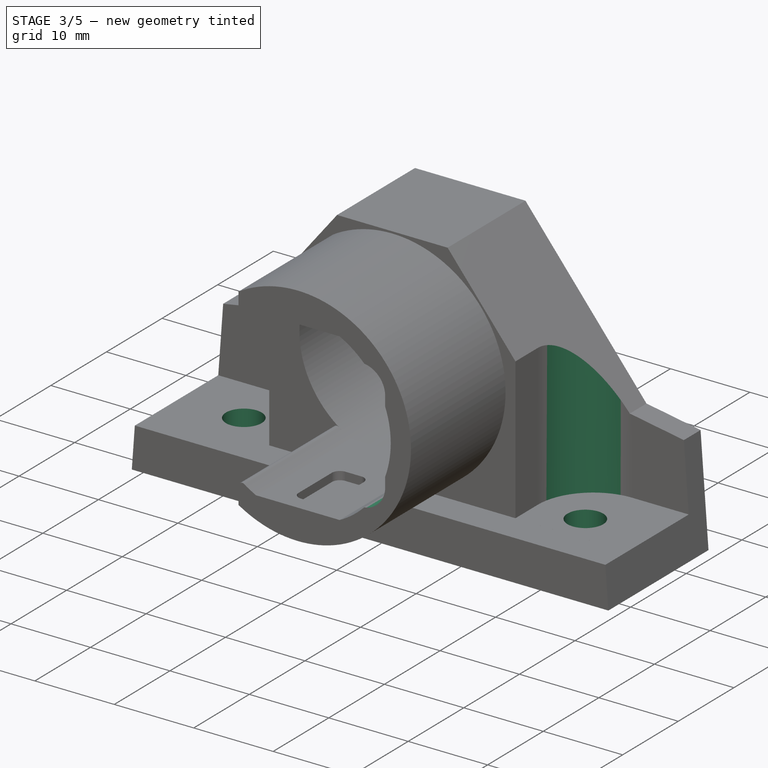
[diagram: stage 3 of 5 — iso view after this stage's code; geometry added in this stage tinted green]
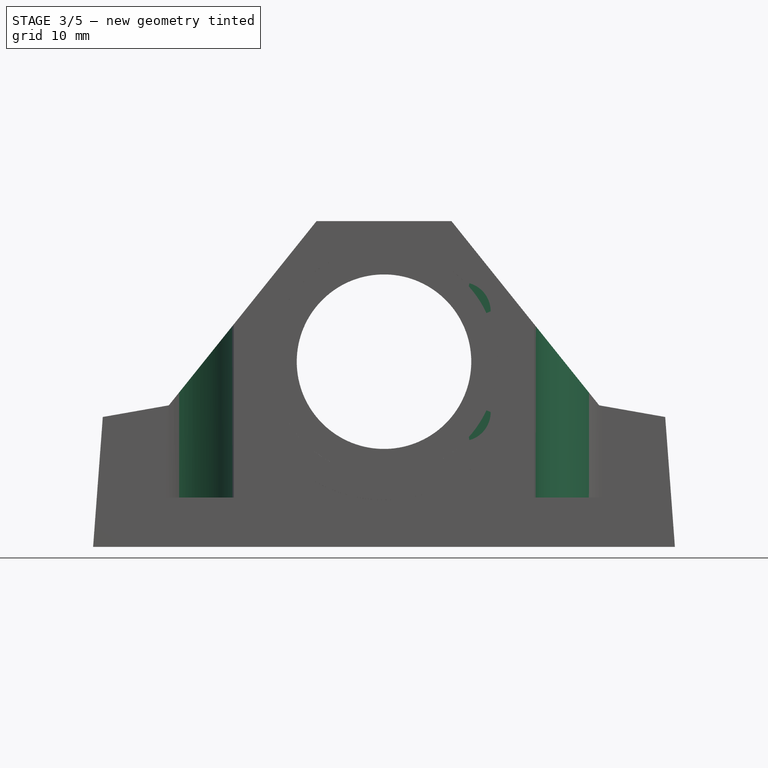
[diagram: stage 3 of 5 — front view after this stage's code; geometry added in this stage tinted green]
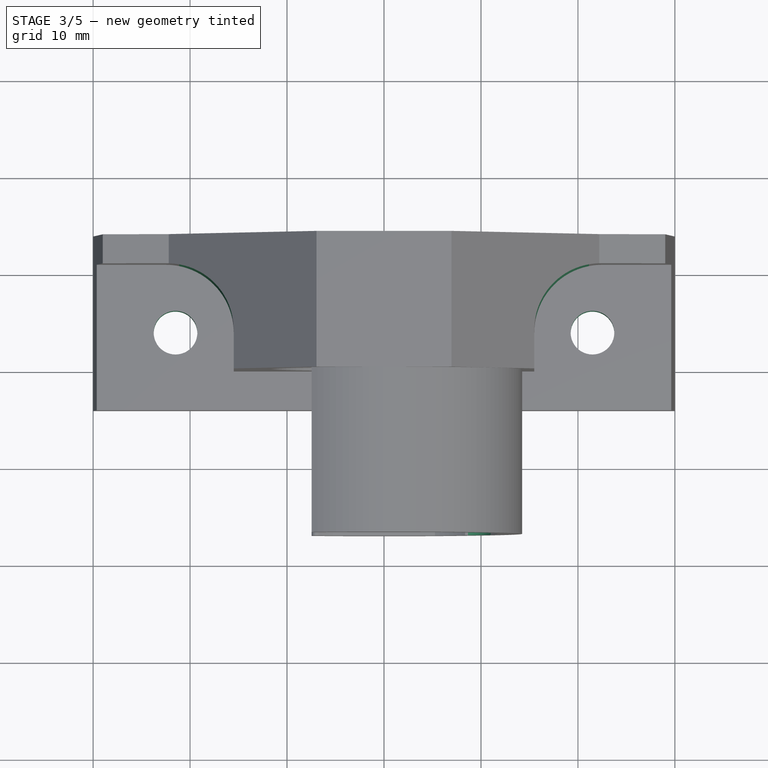
[diagram: stage 3 of 5 — top view after this stage's code; geometry added in this stage tinted green]
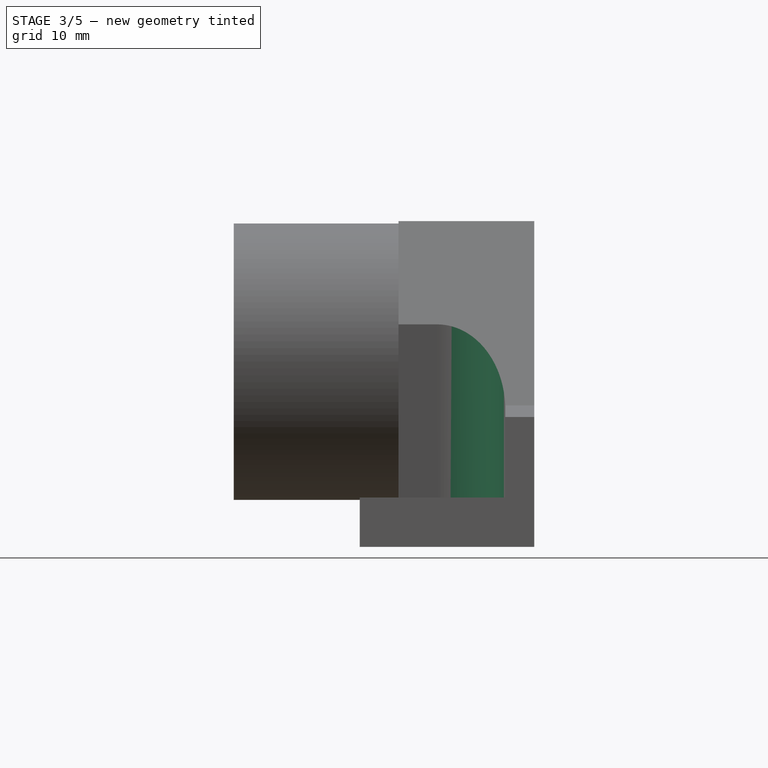
[diagram: stage 3 of 5 — right view after this stage's code; geometry added in this stage tinted green]
FEATURE [Sketcher::SketchObject] Sketch027
  MapMode = 5
  Support = -> [XY_Plane]
  sketch-geometry (6):
    g0: LineSegment StartX=0 StartY=11.49 StartZ=0 EndX=-9 EndY=11.49 EndZ=0
    g1: LineSegment StartX=-9 StartY=11.49 StartZ=0 EndX=-13.0192 EndY=26.49 EndZ=0
    g2: GeomPoint X=-9.91 Y=14 Z=0
    g3: LineSegment [constr] StartX=-9 StartY=11.49 StartZ=0 EndX=-9 EndY=26.49 EndZ=0
    g4: LineSegment StartX=-13.0192 StartY=26.49 StartZ=0 EndX=0 EndY=26.49 EndZ=0
    g5: LineSegment StartX=0 StartY=26.49 StartZ=0 EndX=0 EndY=11.49 EndZ=0
  constraints (17):
    c: PointOnObject(g0,g-2)
    c: Horizontal(g0)
    c: Coincident(g1,g0)
    c: Distance(g2,g0) = 2.51
    c: DistanceX(g2,g0) = 9.91
    c: Distance(g-1,g0) = 11.49
    c: Coincident(g3,g0)
    c: Vertical(g3)
    c: Angle(g3,g1) = 0.261799
    c: Horizontal(g3,g1)
    c: Distance(g0) = 9
    c: Coincident(g4,g1)
    c: PointOnObject(g4,g-2)
    c: Horizontal(g4)
    c: Coincident(g5,g4)
    c: Coincident(g5,g0)
    c: Distance(g5) = 15
FEATURE [PartDesign::Groove] Groove001
  Angle = 360
  Axis = (1e-16,1,-1e-16)
  Base = (0,0,0)
  BaseFeature = -> Groove
  Placement = pos=(0,0,0) rot=(1,0,0;1.5708rad)
  Profile = -> Sketch027
  ReferenceAxis = -> Y_Axis
  Reversed = true
FEATURE [Sketcher::SketchObject] Sketch028
  MapMode = 5
  Placement = pos=(0,-17,-3.8e-15) rot=(1,0,0;1.5708rad)
  Support = -> [Pad004]
  sketch-geometry (6):
    g0: LineSegment StartX=0 StartY=8.2 StartZ=0 EndX=8 EndY=8.2 EndZ=0
    g1: LineSegment StartX=11 StartY=5.2 StartZ=0 EndX=11 EndY=-5.2 EndZ=0
    g2: LineSegment StartX=8 StartY=-8.2 StartZ=0 EndX=0 EndY=-8.2 EndZ=0
    g3: LineSegment StartX=0 StartY=-8.2 StartZ=0 EndX=0 EndY=8.2 EndZ=0
    g4: ArcOfCircle CenterX=8 CenterY=5.2 CenterZ=0 NormalX=0 NormalY=0 NormalZ=1 AngleXU=0 Radius=3 StartAngle=0 EndAngle=1.5708
    g5: ArcOfCircle CenterX=8 CenterY=-5.2 CenterZ=0 NormalX=0 NormalY=0 NormalZ=1 AngleXU=0 Radius=3 StartAngle=4.71239 EndAngle=6.28319
  constraints (15):
    c: Coincident(g2,g3)
    c: Coincident(g3,g0)
    c: Horizontal(g0)
    c: Horizontal(g2)
    c: Vertical(g1)
    c: PointOnObject(g0,g-2)
    c: Tangent(g0,g4) = 1.5708
    c: Tangent(g1,g4) = 1.5708
    c: Tangent(g1,g5) = 1.5708
    c: Tangent(g2,g5) = 1.5708
    c: Equal(g4,g5)
    c: Symmetric(g0,g2,g-1)
    c: Distance(g3) = 16.4
    c: Distance(g-1,g1) = 11
    c: Radius(g4) = 3
FEATURE [PartDesign::Pocket] Pocket006
  BaseFeature = -> Groove001
  Length = 25
  Length2 = 100
  Placement = pos=(0,0,0) rot=(1,0,0;1.5708rad)
  Profile = -> Sketch028
  Type = 0
FEATURE [Sketcher::SketchObject] Sketch029
  MapMode = 5
  Support = -> [XY_Plane]
  sketch-geometry (2):
    g0: Circle CenterX=21.5 CenterY=4 CenterZ=0 NormalX=0 NormalY=0 NormalZ=1 AngleXU=0 Radius=2.25
    g1: Circle CenterX=-21.5 CenterY=4 CenterZ=0 NormalX=0 NormalY=0 NormalZ=1 AngleXU=0 Radius=2.25
  constraints (5):
    c: Symmetric(g0,g1,g-2)
    c: Equal(g1,g0)
    c: Diameter(g0) = 4.5
    c: DistanceX(g-2,g0) = 21.5
    c: DistanceY(g-1,g0) = 4
FEATURE [PartDesign::Pocket] Pocket007
  BaseFeature = -> Pocket006
  Length = 25
  Length2 = 100
  Placement = pos=(0,0,0) rot=(1,0,0;1.5708rad)
  Profile = -> Sketch029
  Type = 0
FEATURE [Sketcher::SketchObject] Sketch030
  MapMode = 5
  Placement = pos=(0,0,0) rot=(1,0,0;1.5708rad)
  Support = -> [XZ_Plane001]
  sketch-geometry (7):
    g0: LineSegment StartX=-17.25 StartY=-14.98 StartZ=0 EndX=-14.5264 EndY=-17.689 EndZ=0
    g1: LineSegment StartX=-12.8552 StartY=-17.2388 StartZ=0 EndX=-12.25 EndY=-14.98 EndZ=0
    g2: LineSegment StartX=-12.25 StartY=-14.98 StartZ=0 EndX=-12.25 EndY=-13.98 EndZ=0
    g3: LineSegment StartX=-12.25 StartY=-13.98 StartZ=0 EndX=-17.25 EndY=-13.98 EndZ=0
    g4: LineSegment StartX=-17.25 StartY=-13.98 StartZ=0 EndX=-17.25 EndY=-14.98 EndZ=0
    g5: ArcOfCircle CenterX=-13.8212 CenterY=-16.98 CenterZ=0 NormalX=0 NormalY=0 NormalZ=1 AngleXU=0 Radius=1 StartAngle=3.92968 EndAngle=6.02139
    g6: LineSegment [constr] StartX=-12.25 StartY=-14.98 StartZ=0 EndX=-12.25 EndY=-16.98 EndZ=0
  constraints (20):
    c: Coincident(g1,g2)
    c: Coincident(g2,g3)
    c: Horizontal(g3)
    c: Coincident(g3,g4)
    c: Coincident(g4,g0)
    c: Vertical(g4)
    c: Tangent(g0,g5) = -1.5708
    c: Tangent(g1,g5) = -1.5708
    c: Coincident(g6,g1)
    c: Vertical(g6)
    c: Parallel(g6,g2)
    c: Radius(g5) = 1
    c: Angle(g1,g6) = 0.261799
    c: Distance(g3) = 5
    c: Distance(g2) = 1
    c: Horizontal(g0,g1)
    c: DistanceX(g-2,g2) = -12.25
    c: Distance(g5,g3) = 3
    c: DistanceY(g-1,g2) = -13.98
    c: Horizontal(g6,g5)
FEATURE [PartDesign::Fillet] Fillet
  Base = -> Pocket007 [Edge141,Edge60]
  BaseFeature = -> Pocket007
  Placement = pos=(0,0,0) rot=(1,0,0;1.5708rad)
  Radius = 7
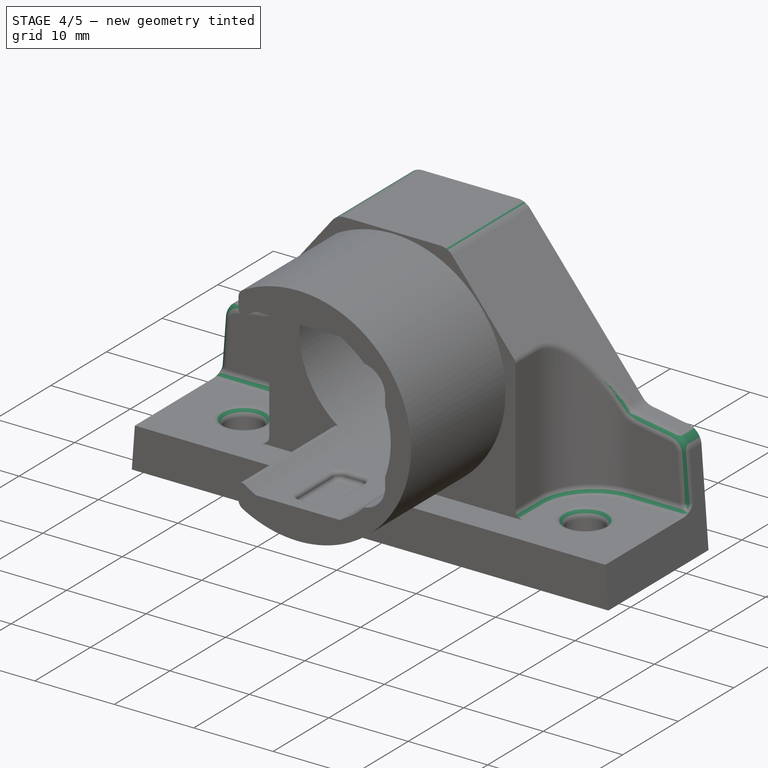
[diagram: stage 4 of 5 — iso view after this stage's code; geometry added in this stage tinted green]
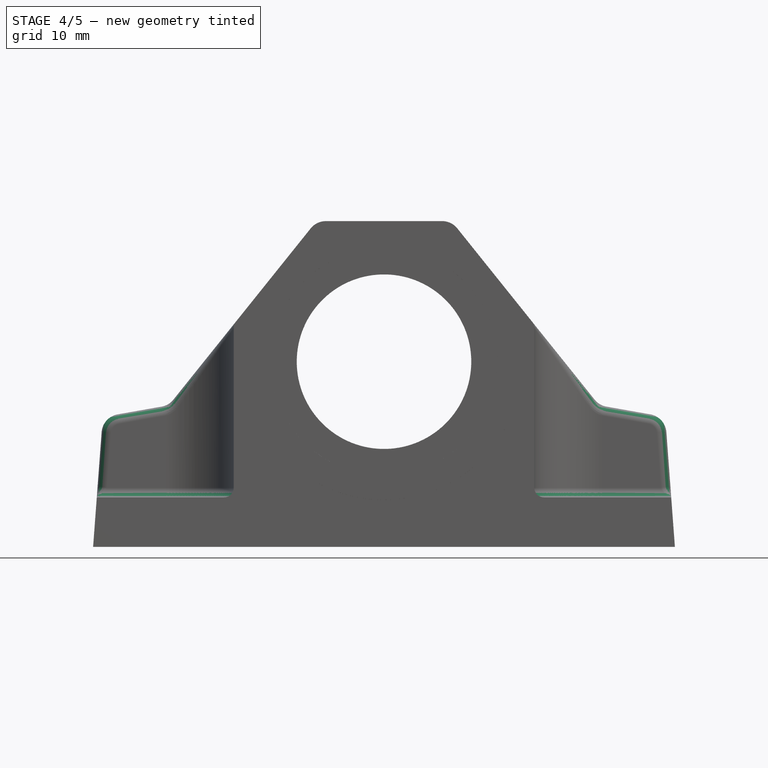
[diagram: stage 4 of 5 — front view after this stage's code; geometry added in this stage tinted green]
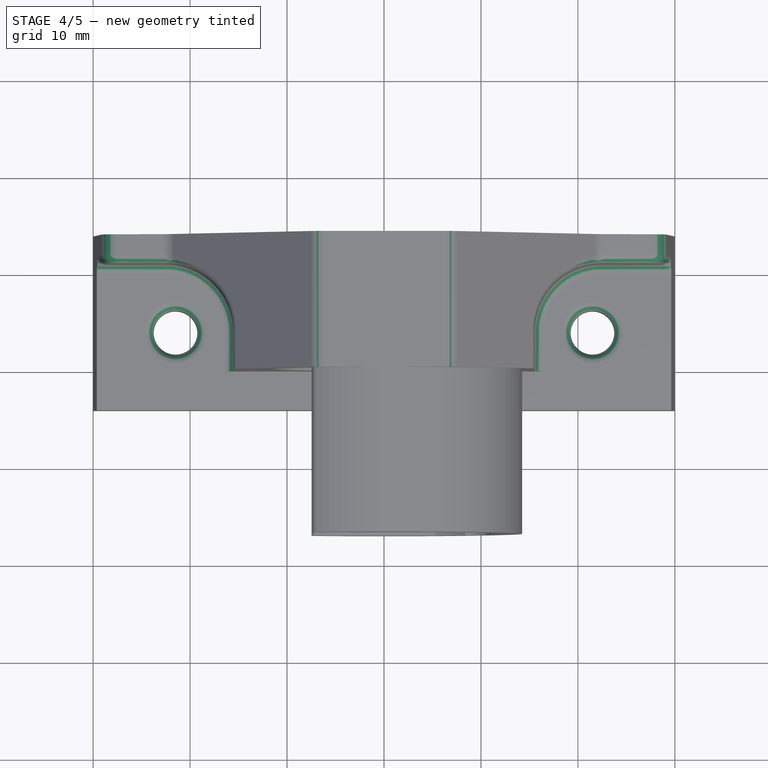
[diagram: stage 4 of 5 — top view after this stage's code; geometry added in this stage tinted green]
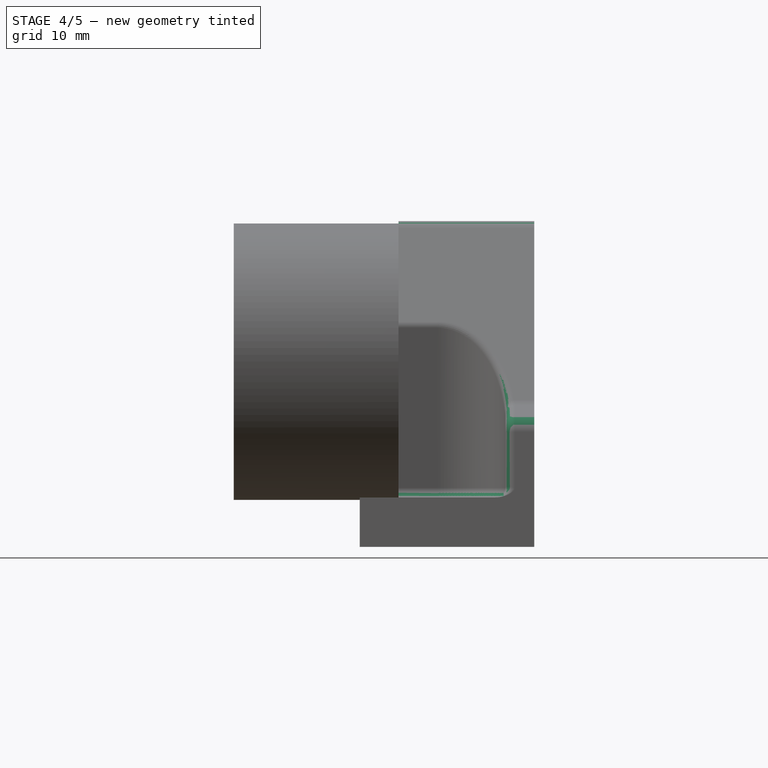
[diagram: stage 4 of 5 — right view after this stage's code; geometry added in this stage tinted green]
FEATURE [PartDesign::Fillet] Fillet001
  Base = -> Fillet [Edge81,Edge84,Edge39,Edge8,Edge4,Edge26]
  BaseFeature = -> Fillet
  Placement = pos=(0,0,0) rot=(1,0,0;1.5708rad)
  Radius = 2
FEATURE [PartDesign::Fillet] Fillet002
  Base = -> Fillet001 [Edge117,Edge77,Edge11,Edge1]
  BaseFeature = -> Fillet001
  Placement = pos=(0,0,0) rot=(1,0,0;1.5708rad)
  Radius = 1
FEATURE [PartDesign::Fillet] Fillet003
  Base = -> Fillet002 [Edge174,Edge168]
  BaseFeature = -> Fillet002
  Placement = pos=(0,0,0) rot=(1,0,0;1.5708rad)
  Radius = 1
FEATURE [PartDesign::Fillet] Fillet004
  Base = -> Fillet003 [Face116,Edge189,Face115,Edge150]
  BaseFeature = -> Fillet003
  Placement = pos=(0,0,0) rot=(1,0,0;1.5708rad)
  Radius = 0.5
FEATURE [PartDesign::Fillet] Fillet005
  Base = -> Fillet004 [Edge240,Edge289]
  BaseFeature = -> Fillet004
  Placement = pos=(0,0,0) rot=(1,0,0;1.5708rad)
  Radius = 1
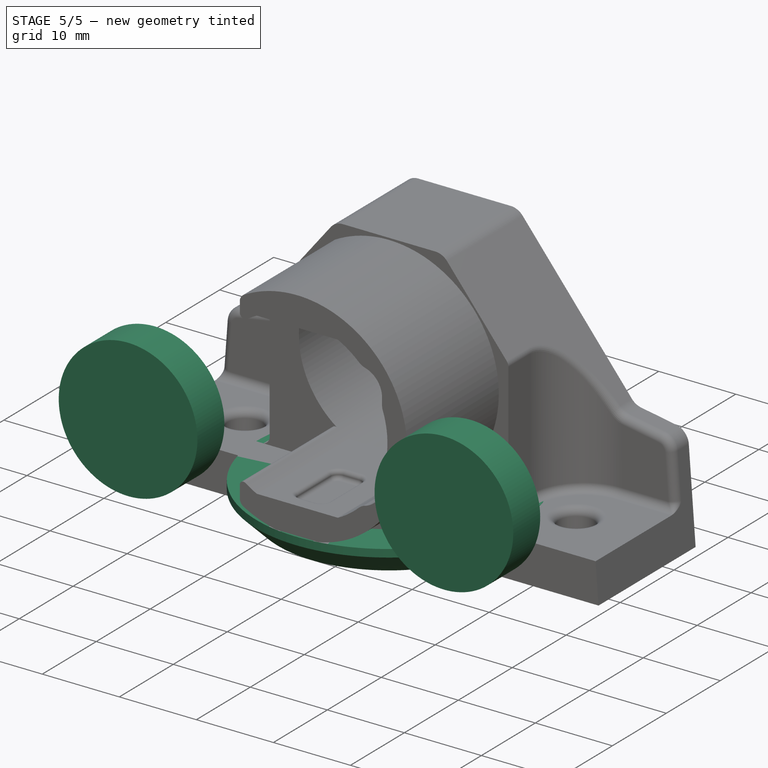
[diagram: stage 5 of 5 — iso view after this stage's code; geometry added in this stage tinted green]
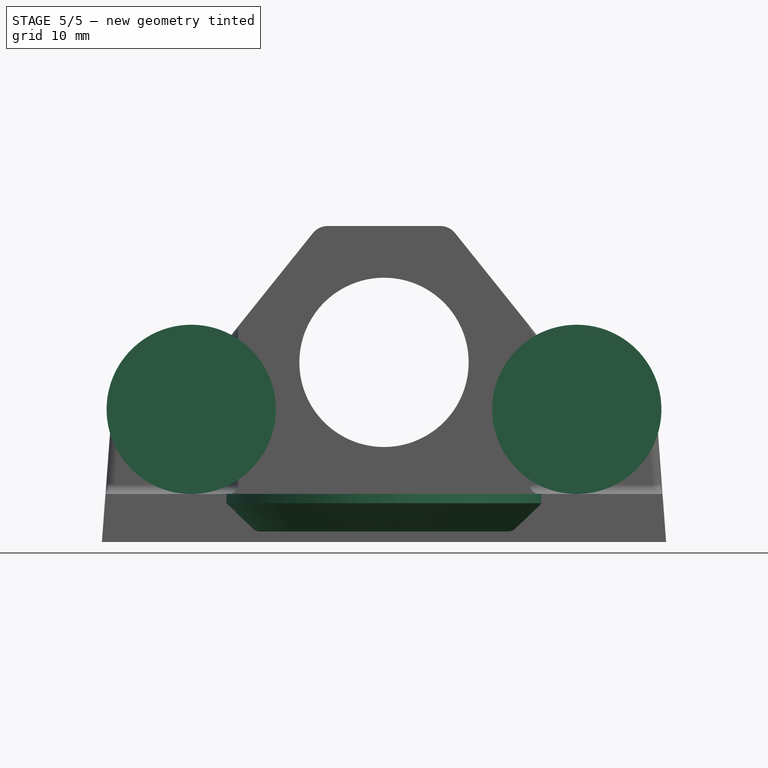
[diagram: stage 5 of 5 — front view after this stage's code; geometry added in this stage tinted green]
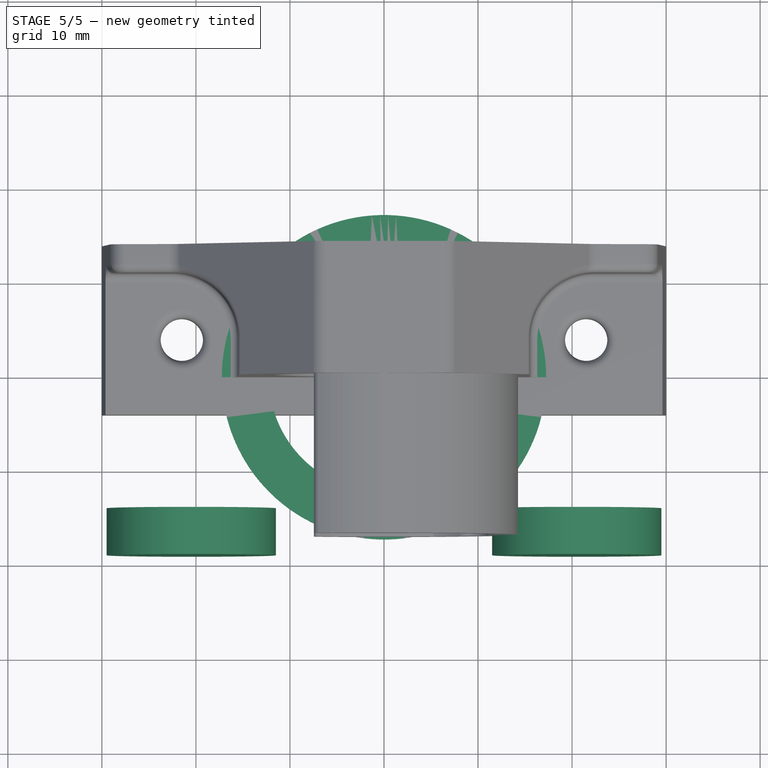
[diagram: stage 5 of 5 — top view after this stage's code; geometry added in this stage tinted green]
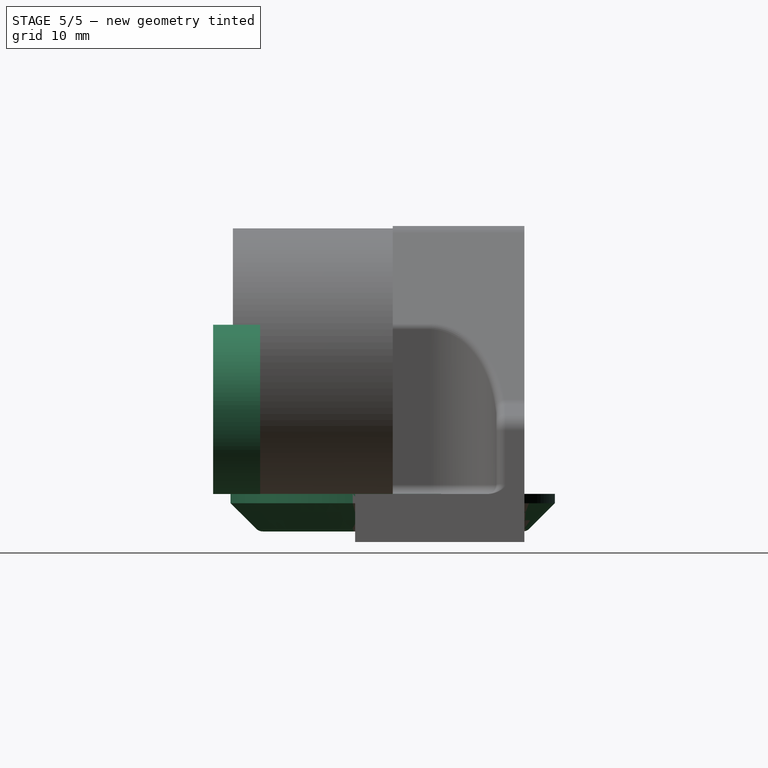
[diagram: stage 5 of 5 — right view after this stage's code; geometry added in this stage tinted green]
FEATURE [Part::Cylinder] Cylinder
  Angle = 360
  AttacherType = Attacher::AttachEngine3D
  Height = 5
  Placement = pos=(-20.5,-19.1,-5) rot=(1,0,0;-1.5708rad)
  Radius = 9
FEATURE [Part::Cylinder] Cylinder001
  Angle = 360
  AttacherType = Attacher::AttachEngine3D
  Height = 5
  Placement = pos=(20.5,-19.1,-5) rot=(-1,0,0;1.5708rad)
  Radius = 9
FEATURE [App::DocumentObjectGroup] Group  label="filler"
  Group = -> [Cylinder,Cylinder001]
FEATURE [PartDesign::Revolution] Revolution
  Angle = 360
  Axis = (0,2e-16,1)
  Base = (0,0,0)
  Placement = pos=(0,0,0) rot=(1,0,0;1.5708rad)
  Profile = -> Sketch030
  ReferenceAxis = -> Sketch030 [V_Axis]
FEATURE [PartDesign::Body] Body001  label="shroud1"
  Group = -> [Sketch030,Revolution]
  Origin = -> Origin001
  Tip = -> Revolution
FEATURE [PartDesign::Fillet] Fillet006
  Base = -> Fillet005 [Edge243,Edge242,Edge233,Edge238,Edge226,Edge227,Edge221,Edge217]
  BaseFeature = -> Fillet005
  Placement = pos=(0,0,0) rot=(1,0,0;1.5708rad)
  Radius = 2
FEATURE [PartDesign::Body] Body  label="SensorBracket"
  Group = -> [Sketch,Pad,Sketch004,Pad001,Sketch005,Pocket001,Sketch012,Sketch014,Pocket,Sketch016,Sketch018,Sketch019,Pocket002,Pad003,Pocket003,Sketch021,Pad004,Sketch024,Groove,Sketch027,Groove001,Sketch028,Pocket006,Sketch029,Pocket007,Fillet,Fillet001,Fillet002,Fillet003,Fillet004,Fillet005,Fillet006]
  Origin = -> Origin
  Placement = pos=(0,0,0) rot=(-1,0,0;1.5708rad)
  Tip = -> Fillet006
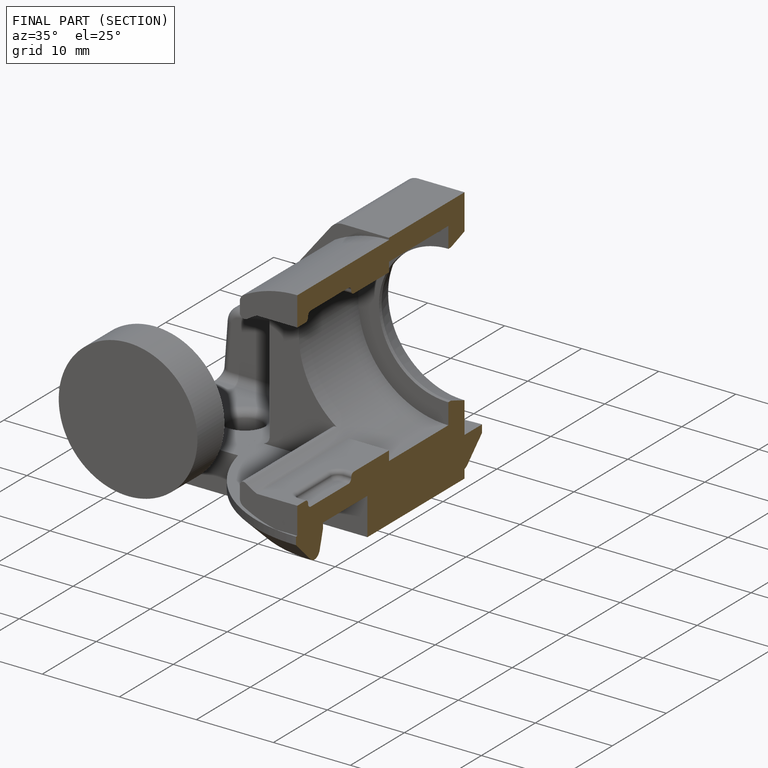
[diagram: finished part — half-section view (interior)]
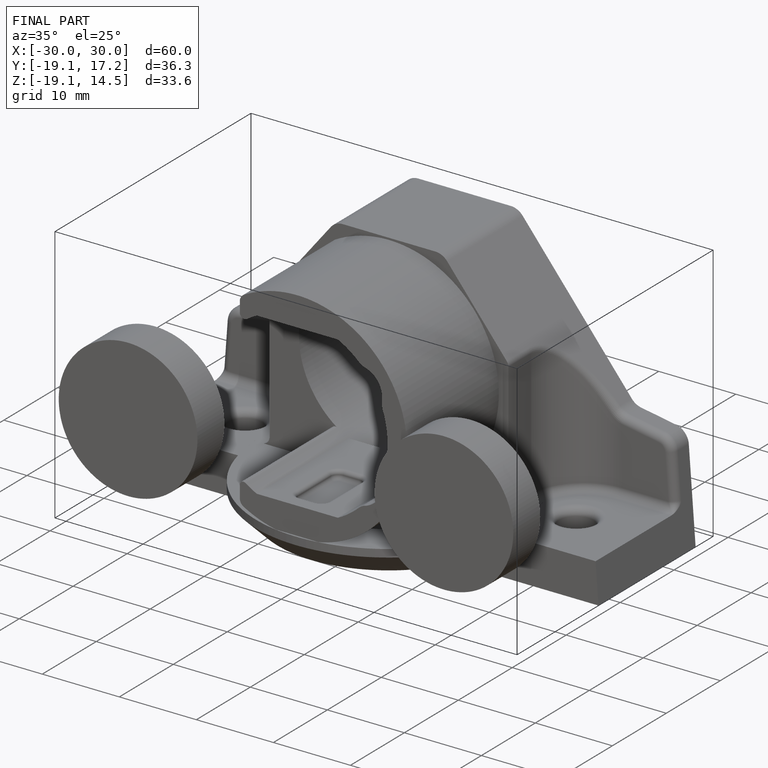
[diagram: finished part — iso view with bounding-box wireframe]
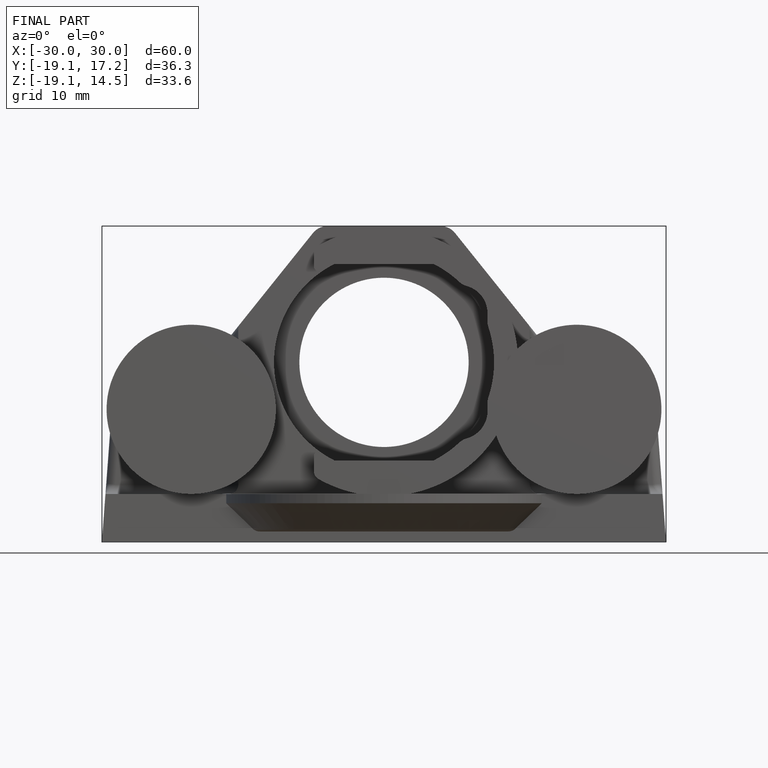
[diagram: finished part — front view with bounding-box wireframe]
